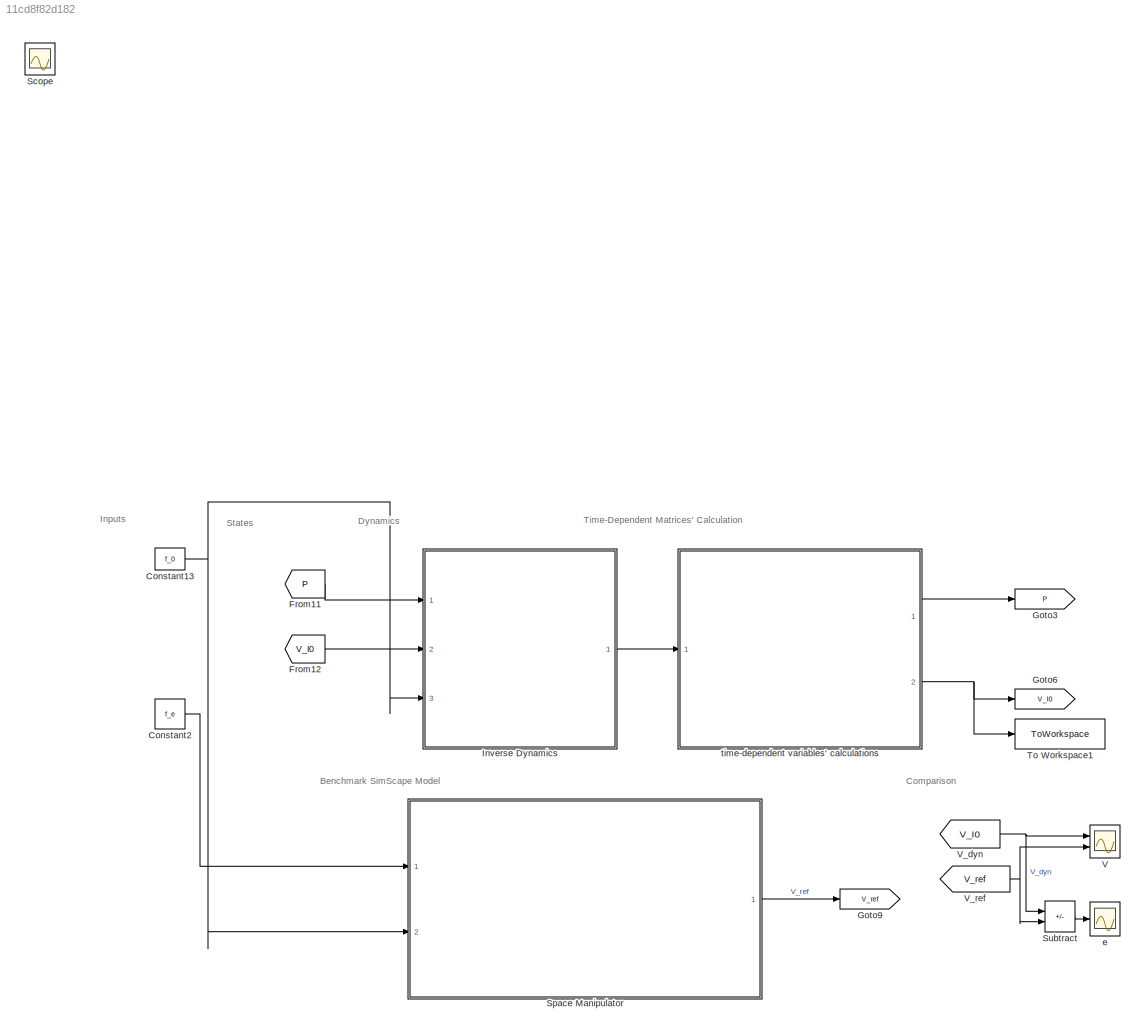
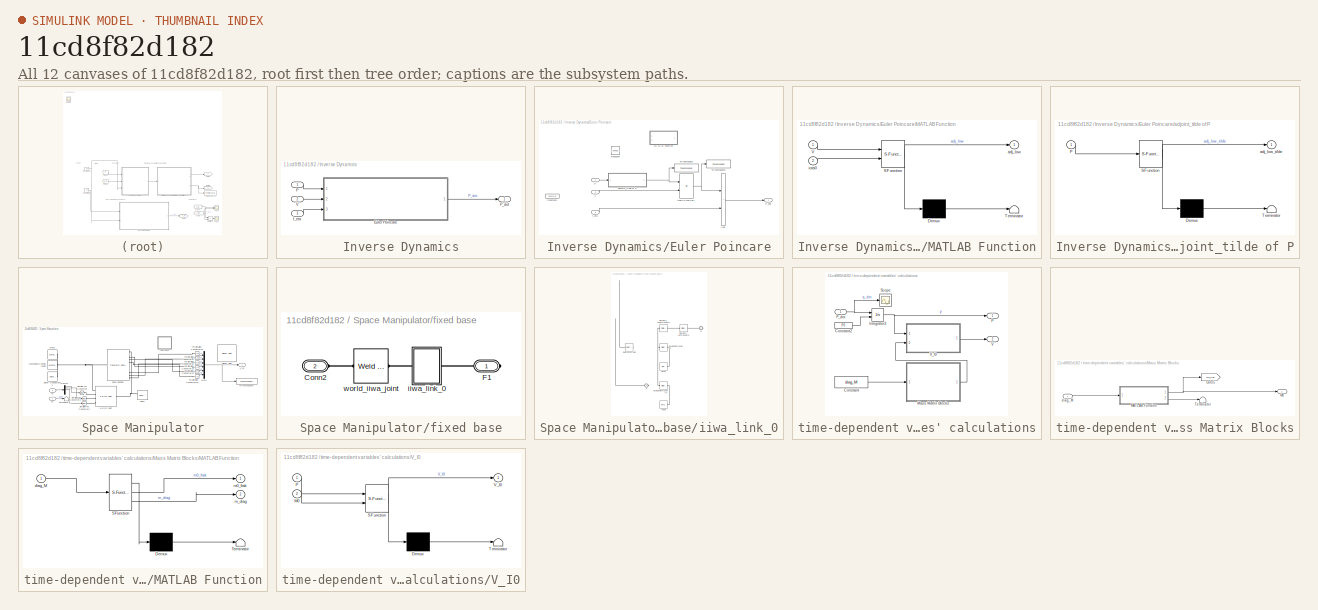
[diagram: thumbnail index - all 12 canvases of the model, root first then tree order]
MODEL slx_11cd8f82d182
KIND model
CONFIG AbsTol = auto
CONFIG EnableMultiTasking = off
CONFIG FixedStep = 0.01
CONFIG InitFcn = % ************** Initiate forces\n% f0=[0;0;0;0;0;0];\n%f_0=[1;2;3;0;0;0];\n%f_0=[0;0;0];\n%f_m=[0.1;0;0.3;0.2;0;0.15;0];\n%f_e=[0;0;0;0;0;0];\n% ************** Initiate states\n%q_m=[0;0];\n%q_dot_m=[0;0];\n%P=[0;0;0];\n%V_I0=[0;0;0];\n% ************** Load main\n%run(Main.m)\n%P0=[1; 2; 3; 0 ;0;0];
CONFIG MaxStep = auto
CONFIG MinStep = auto
CONFIG RelTol = 1e-3
CONFIG SampleTimeConstraint = Unconstrained
CONFIG SolverName = ode4
CONFIG StartTime = 0.0
CONFIG StopTime = 5
BLOCK [Constant] Constant13
  Value = f_0
  VectorParams1D = off
BLOCK [Constant] Constant2
  Value = f_e
  VectorParams1D = off
BLOCK [From] From11
  GotoTag = P
  TagVisibility = global
BLOCK [From] From12
  GotoTag = V_I0
  TagVisibility = global
BLOCK [Goto] Goto3
  GotoTag = P
  TagVisibility = global
BLOCK [Goto] Goto6
  GotoTag = V_I0
  TagVisibility = global
BLOCK [Goto] Goto9
  GotoTag = V_ref
  TagVisibility = global
BLOCK [SubSystem] Inverse Dynamics
  NameLocation = right
  Ports = [3, 1]
  RequestExecContextInheritance = off
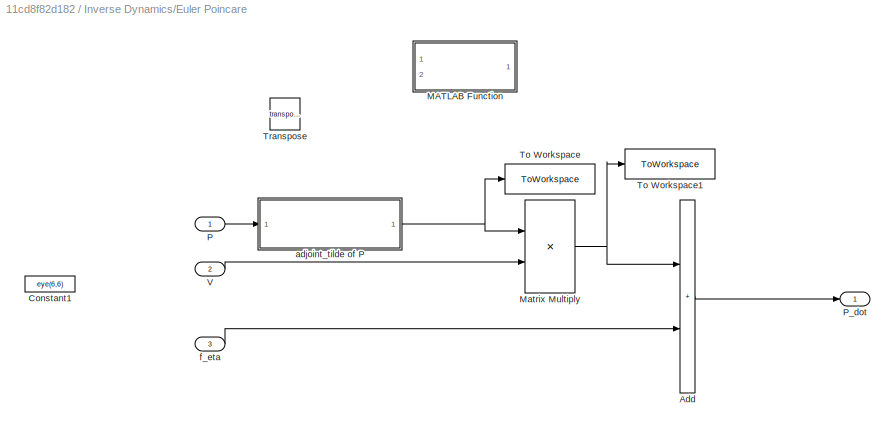
BLOCK [SubSystem] Inverse Dynamics/Euler Poincare
  Ports = [3, 1]
  RequestExecContextInheritance = off
BLOCK [Sum] Inverse Dynamics/Euler Poincare/Add
  IconShape = rectangular
  Ports = [2, 1]
BLOCK [Constant] Inverse Dynamics/Euler Poincare/Constant1
  Commented = on
  Value = eye(6,6)
BLOCK [SubSystem] Inverse Dynamics/Euler Poincare/MATLAB Function
  Commented = on
  ErrorFcn = Stateflow.Translate.translate
  PermitHierarchicalResolution = ExplicitOnly
  Ports = [2, 1]
  RequestExecContextInheritance = off
  SFBlockType = MATLAB Function
  TreatAsAtomicUnit = on
BLOCK [Demux] Inverse Dynamics/Euler Poincare/MATLAB Function/ Demux 
  Outputs = 1
  Ports = [1, 1]
BLOCK [S-Function] Inverse Dynamics/Euler Poincare/MATLAB Function/ SFunction 
  EnableBusSupport = on
  FunctionName = sf_sfun
  PortCounts = [2 2]
  Ports = [2, 2]
  SFcnIsStateOwnerBlock = off
  SFunctionDeploymentMode = off
  Tag = Stateflow S-Function 27
BLOCK [Terminator] Inverse Dynamics/Euler Poincare/MATLAB Function/ Terminator 
BLOCK [Inport] Inverse Dynamics/Euler Poincare/MATLAB Function/V
BLOCK [Outport] Inverse Dynamics/Euler Poincare/MATLAB Function/adj_low
BLOCK [Inport] Inverse Dynamics/Euler Poincare/MATLAB Function/iota0
  Port = 2
BLOCK [Product] Inverse Dynamics/Euler Poincare/Matrix Multiply
  Multiplication = Matrix(*)
  Ports = [2, 1]
BLOCK [Inport] Inverse Dynamics/Euler Poincare/P
BLOCK [Outport] Inverse Dynamics/Euler Poincare/P_dot
BLOCK [ToWorkspace] Inverse Dynamics/Euler Poincare/To Workspace
  FixptAsFi = on
  MaxDataPoints = inf
  Ports = [1]
  SampleTime = -1
  SaveFormat = Timeseries
  VariableName = simout
BLOCK [ToWorkspace] Inverse Dynamics/Euler Poincare/To Workspace1
  FixptAsFi = on
  MaxDataPoints = inf
  Ports = [1]
  SampleTime = -1
  SaveFormat = Timeseries
  VariableName = simout1
BLOCK [Math] Inverse Dynamics/Euler Poincare/Transpose
  Commented = on
  Operator = transpose
  Ports = [1, 1]
BLOCK [Inport] Inverse Dynamics/Euler Poincare/V
  Port = 2
BLOCK [SubSystem] Inverse Dynamics/Euler Poincare/adjoint_tilde of P
  ErrorFcn = Stateflow.Translate.translate
  PermitHierarchicalResolution = ExplicitOnly
  Ports = [1, 1]
  RequestExecContextInheritance = off
  SFBlockType = MATLAB Function
  TreatAsAtomicUnit = on
BLOCK [Demux] Inverse Dynamics/Euler Poincare/adjoint_tilde of P/ Demux 
  Outputs = 1
  Ports = [1, 1]
BLOCK [S-Function] Inverse Dynamics/Euler Poincare/adjoint_tilde of P/ SFunction 
  EnableBusSupport = on
  FunctionName = sf_sfun
  PortCounts = [1 2]
  Ports = [1, 2]
  SFcnIsStateOwnerBlock = off
  SFunctionDeploymentMode = off
  Tag = Stateflow S-Function 1
BLOCK [Terminator] Inverse Dynamics/Euler Poincare/adjoint_tilde of P/ Terminator 
BLOCK [Inport] Inverse Dynamics/Euler Poincare/adjoint_tilde of P/P
BLOCK [Outport] Inverse Dynamics/Euler Poincare/adjoint_tilde of P/adj_low_tilde
BLOCK [Inport] Inverse Dynamics/Euler Poincare/f_eta
  Port = 3
BLOCK [Inport] Inverse Dynamics/P
BLOCK [Outport] Inverse Dynamics/P_dot
BLOCK [Inport] Inverse Dynamics/V
  Port = 2
BLOCK [Inport] Inverse Dynamics/f_eta
  Port = 3
BLOCK [Scope] Scope
  Floating = off
  IOType = viewer
  NumInputPorts = 1
  Ports = []
  ScopeSpecificationString = Simulink.scopes.TimeScopeBlockCfg('CurrentConfiguration', extmgr.ConfigurationSet(extmgr.Configuration('Core','General UI',true),extmgr.Configuration('Core','Source UI',true),extmgr.Configuration('Sources','WiredSimulink',true),extmgr.Configuration('Visuals','Time Domain',true,'SerializedDisplays',{struct('MinYLimReal','-10','MaxYLimReal','10','YLabelReal','','MinYLimMag','0','MaxYLimMag','10','Le...<+777ch>
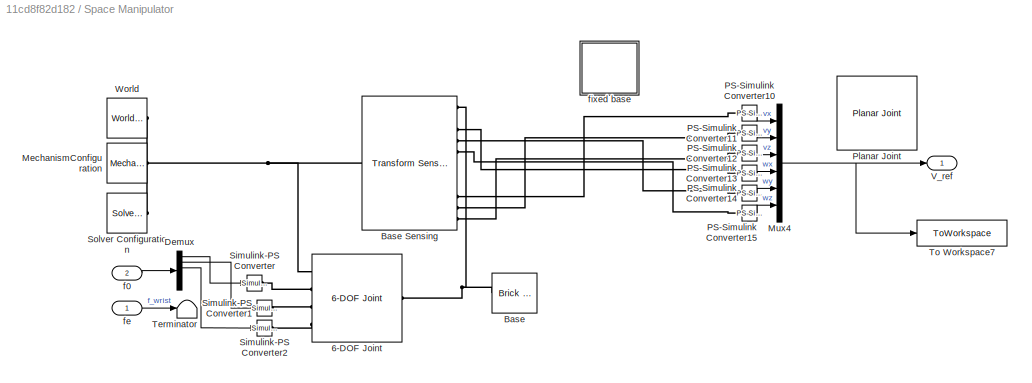
BLOCK [SubSystem] Space Manipulator
  Ports = [2, 1]
  RequestExecContextInheritance = off
BLOCK [Reference] Space Manipulator/6-DOF Joint  REF=sm_lib/Joints/6-DOF Joint
  Ports = [0, 0, 0, 0, 0, 4, 1]
  SourceBlock = sm_lib/Joints/6-DOF Joint
  SourceProductBaseCode = MS
  SourceType = 6-DOF Joint
BLOCK [Reference] Space Manipulator/Base  REF=sm_lib/Body Elements/Brick Solid
  Ports = [0, 0, 0, 0, 0, 1, 1]
  SourceBlock = sm_lib/Body Elements/Brick Solid
  SourceProductBaseCode = MS
  SourceType = Brick Solid
BLOCK [Reference] Space Manipulator/Base Sensing  REF=sm_lib/Frames and
Transforms/Transform
Sensor
  Ports = [0, 0, 0, 0, 0, 1, 11]
  SourceBlock = sm_lib/Frames and\nTransforms/Transform\nSensor
  SourceProductBaseCode = MS
  SourceType = Transform\nSensor
BLOCK [Demux] Space Manipulator/Demux
  Outputs = 6
  Ports = [1, 6]
BLOCK [Reference] Space Manipulator/MechanismConfiguration  REF=sm_lib/Utilities/Mechanism
Configuration
  Ports = [0, 0, 0, 0, 0, 0, 1]
  SourceBlock = sm_lib/Utilities/Mechanism\nConfiguration
  SourceProductBaseCode = MS
  SourceType = Mechanism\nConfiguration
BLOCK [Mux] Space Manipulator/Mux4
  DisplayOption = bar
  Inputs = 6
  Ports = [6, 1]
BLOCK [Reference] Space Manipulator/PS-Simulink Converter10  REF=nesl_utility/PS-Simulink
Converter
  Ports = [0, 1, 0, 0, 0, 1]
  SourceBlock = nesl_utility/PS-Simulink\nConverter
  SourceProductBaseCode = PW,SS
  SourceType = PS-Simulink\nConverter
BLOCK [Reference] Space Manipulator/PS-Simulink Converter11  REF=nesl_utility/PS-Simulink
Converter
  Ports = [0, 1, 0, 0, 0, 1]
  SourceBlock = nesl_utility/PS-Simulink\nConverter
  SourceProductBaseCode = PW,SS
  SourceType = PS-Simulink\nConverter
BLOCK [Reference] Space Manipulator/PS-Simulink Converter12  REF=nesl_utility/PS-Simulink
Converter
  Ports = [0, 1, 0, 0, 0, 1]
  SourceBlock = nesl_utility/PS-Simulink\nConverter
  SourceProductBaseCode = PW,SS
  SourceType = PS-Simulink\nConverter
BLOCK [Reference] Space Manipulator/PS-Simulink Converter13  REF=nesl_utility/PS-Simulink
Converter
  Ports = [0, 1, 0, 0, 0, 1]
  SourceBlock = nesl_utility/PS-Simulink\nConverter
  SourceProductBaseCode = PW,SS
  SourceType = PS-Simulink\nConverter
BLOCK [Reference] Space Manipulator/PS-Simulink Converter14  REF=nesl_utility/PS-Simulink
Converter
  Ports = [0, 1, 0, 0, 0, 1]
  SourceBlock = nesl_utility/PS-Simulink\nConverter
  SourceProductBaseCode = PW,SS
  SourceType = PS-Simulink\nConverter
BLOCK [Reference] Space Manipulator/PS-Simulink Converter15  REF=nesl_utility/PS-Simulink
Converter
  Ports = [0, 1, 0, 0, 0, 1]
  SourceBlock = nesl_utility/PS-Simulink\nConverter
  SourceProductBaseCode = PW,SS
  SourceType = PS-Simulink\nConverter
BLOCK [Reference] Space Manipulator/Planar Joint  REF=sm_lib/Joints/Planar Joint
  Commented = on
  Ports = [0, 0, 0, 0, 0, 1, 4]
  SourceBlock = sm_lib/Joints/Planar Joint
  SourceProductBaseCode = MS
  SourceType = Planar Joint
BLOCK [Reference] Space Manipulator/Simulink-PS Converter  REF=nesl_utility/Simulink-PS
Converter
  Ports = [1, 0, 0, 0, 0, 0, 1]
  SourceBlock = nesl_utility/Simulink-PS\nConverter
  SourceProductBaseCode = PW,SS
  SourceType = Simulink-PS\nConverter
BLOCK [Reference] Space Manipulator/Simulink-PS Converter1  REF=nesl_utility/Simulink-PS
Converter
  Ports = [1, 0, 0, 0, 0, 0, 1]
  SourceBlock = nesl_utility/Simulink-PS\nConverter
  SourceProductBaseCode = PW,SS
  SourceType = Simulink-PS\nConverter
BLOCK [Reference] Space Manipulator/Simulink-PS Converter2  REF=nesl_utility/Simulink-PS
Converter
  Ports = [1, 0, 0, 0, 0, 0, 1]
  SourceBlock = nesl_utility/Simulink-PS\nConverter
  SourceProductBaseCode = PW,SS
  SourceType = Simulink-PS\nConverter
BLOCK [Reference] Space Manipulator/Solver Configuration  REF=nesl_utility/Solver
Configuration
  Ports = [0, 0, 0, 0, 0, 0, 1]
  SourceBlock = nesl_utility/Solver\nConfiguration
  SourceProductBaseCode = PW,SS
  SourceType = Solver\nConfiguration
BLOCK [Terminator] Space Manipulator/Terminator
BLOCK [ToWorkspace] Space Manipulator/To Workspace7
  FixptAsFi = on
  MaxDataPoints = inf
  Ports = [1]
  SampleTime = -1
  VariableName = V_ref
BLOCK [Outport] Space Manipulator/V_ref
BLOCK [Reference] Space Manipulator/World  REF=sm_lib/Frames and
Transforms/World Frame
  Ports = [0, 0, 0, 0, 0, 0, 1]
  SourceBlock = sm_lib/Frames and\nTransforms/World Frame
  SourceProductBaseCode = MS
  SourceType = World Frame
BLOCK [Inport] Space Manipulator/f0
  Port = 2
BLOCK [Inport] Space Manipulator/fe
BLOCK [SubSystem] Space Manipulator/fixed base
  Commented = on
  Ports = [0, 0, 0, 0, 0, 1, 1]
  RequestExecContextInheritance = off
BLOCK [PMIOPort] Space Manipulator/fixed base/Conn2
  Port = 2
  Side = Left
BLOCK [PMIOPort] Space Manipulator/fixed base/F1
  Side = Right
BLOCK [SubSystem] Space Manipulator/fixed base/iiwa_link_0
  Ports = [0, 0, 0, 0, 0, 1, 1]
  RequestExecContextInheritance = off
BLOCK [PMIOPort] Space Manipulator/fixed base/iiwa_link_0/F
  Side = Left
BLOCK [PMIOPort] Space Manipulator/fixed base/iiwa_link_0/F1
  Port = 2
  Side = Right
BLOCK [Reference] Space Manipulator/fixed base/iiwa_link_0/Inertia  REF=sm_lib/Body Elements/Inertia
  Ports = [0, 0, 0, 0, 0, 0, 1]
  SourceBlock = sm_lib/Body Elements/Inertia
  SourceProductBaseCode = MS
  SourceType = Inertia
BLOCK [Reference] Space Manipulator/fixed base/iiwa_link_0/InertiaOriginTransform  REF=sm_lib/Frames and
Transforms/Rigid
Transform
  Ports = [0, 0, 0, 0, 0, 1, 1]
  SourceBlock = sm_lib/Frames and\nTransforms/Rigid\nTransform
  SourceProductBaseCode = MS
  SourceType = Rigid\nTransform
BLOCK [Reference] Space Manipulator/fixed base/iiwa_link_0/ReferenceFrame  REF=sm_lib/Frames and
Transforms/Reference
Frame
  Ports = [0, 0, 0, 0, 0, 0, 1]
  SourceBlock = sm_lib/Frames and\nTransforms/Reference\nFrame
  SourceProductBaseCode = MS
  SourceType = Reference\nFrame
BLOCK [Reference] Space Manipulator/fixed base/iiwa_link_0/Visual  REF=sm_lib/Body Elements/File Solid
  Ports = [0, 0, 0, 0, 0, 0, 1]
  SourceBlock = sm_lib/Body Elements/File Solid
  SourceProductBaseCode = MS
  SourceType = File Solid
BLOCK [Reference] Space Manipulator/fixed base/iiwa_link_0/VisualOriginTransform  REF=sm_lib/Frames and
Transforms/Rigid
Transform
  Ports = [0, 0, 0, 0, 0, 1, 1]
  SourceBlock = sm_lib/Frames and\nTransforms/Rigid\nTransform
  SourceProductBaseCode = MS
  SourceType = Rigid\nTransform
BLOCK [Reference] Space Manipulator/fixed base/iiwa_link_0/iiwa_joint_1_AxisTransform  REF=sm_lib/Frames and
Transforms/Rigid
Transform
  Ports = [0, 0, 0, 0, 0, 1, 1]
  SourceBlock = sm_lib/Frames and\nTransforms/Rigid\nTransform
  SourceProductBaseCode = MS
  SourceType = Rigid\nTransform
BLOCK [Reference] Space Manipulator/fixed base/iiwa_link_0/iiwa_joint_1_OriginTransform  REF=sm_lib/Frames and
Transforms/Rigid
Transform
  Ports = [0, 0, 0, 0, 0, 1, 1]
  SourceBlock = sm_lib/Frames and\nTransforms/Rigid\nTransform
  SourceProductBaseCode = MS
  SourceType = Rigid\nTransform
BLOCK [Reference] Space Manipulator/fixed base/world_iiwa_joint  REF=sm_lib/Joints/Weld Joint
  Ports = [0, 0, 0, 0, 0, 1, 1]
  SourceBlock = sm_lib/Joints/Weld Joint
  SourceProductBaseCode = MS
  SourceType = Weld Joint
BLOCK [Sum] Subtract
  IconShape = rectangular
  Inputs = +-
  Ports = [2, 1]
BLOCK [ToWorkspace] To Workspace1
  FixptAsFi = on
  MaxDataPoints = inf
  Ports = [1]
  SampleTime = -1
  SaveFormat = Timeseries
  VariableName = V_I0
BLOCK [Scope] V
  Floating = off
  NumInputPorts = 2
  Ports = [2]
  ScopeSpecificationString = Simulink.scopes.TimeScopeBlockCfg('CurrentConfiguration', extmgr.ConfigurationSet(extmgr.Configuration('Core','General UI',true),extmgr.Configuration('Core','Source UI',true),extmgr.Configuration('Sources','WiredSimulink',true,'DataLoggingVariableName','ScopeData2'),extmgr.Configuration('Visuals','Time Domain',true,'SerializedDisplays',{struct('MinYLimReal','-0.1875','MaxYLimReal','1.6875','YLabel...<+1976ch>
BLOCK [From] V_dyn
  GotoTag = V_I0
  TagVisibility = global
BLOCK [From] V_ref
  GotoTag = V_ref
  TagVisibility = global
BLOCK [Scope] e
  Floating = off
  NumInputPorts = 1
  Ports = [1]
  ScopeSpecificationString = Simulink.scopes.TimeScopeBlockCfg('CurrentConfiguration', extmgr.ConfigurationSet(extmgr.Configuration('Core','General UI',true),extmgr.Configuration('Core','Source UI',true),extmgr.Configuration('Sources','WiredSimulink',true,'DataLoggingVariableName','ScopeData1'),extmgr.Configuration('Visuals','Time Domain',true,'SerializedDisplays',{struct('MinYLimReal','-0.000000000000015','MaxYLimReal','0.00...<+1715ch>
BLOCK [SubSystem] time-dependent variables' calculations
  Ports = [1, 2]
  RequestExecContextInheritance = off
BLOCK [Constant] time-dependent variables' calculations/Constant
  Value = diag_M
  VectorParams1D = off
BLOCK [Constant] time-dependent variables' calculations/Constant2
  Value = P0
  VectorParams1D = off
BLOCK [Integrator] time-dependent variables' calculations/Integrator3
  InitialConditionSource = external
  Ports = [2, 1]
BLOCK [SubSystem] time-dependent variables' calculations/Mass Matrix Blocks
  Ports = [1, 1]
  RequestExecContextInheritance = off
BLOCK [Goto] time-dependent variables' calculations/Mass Matrix Blocks/Goto5
  GotoTag = m0_frak
  TagVisibility = global
BLOCK [Outport] time-dependent variables' calculations/Mass Matrix Blocks/M0
BLOCK [SubSystem] time-dependent variables' calculations/Mass Matrix Blocks/MATLAB Function
  ErrorFcn = Stateflow.Translate.translate
  PermitHierarchicalResolution = ExplicitOnly
  Ports = [1, 2]
  RequestExecContextInheritance = off
  SFBlockType = MATLAB Function
  TreatAsAtomicUnit = on
BLOCK [Demux] time-dependent variables' calculations/Mass Matrix Blocks/MATLAB Function/ Demux 
  Outputs = 1
  Ports = [1, 1]
BLOCK [S-Function] time-dependent variables' calculations/Mass Matrix Blocks/MATLAB Function/ SFunction 
  EnableBusSupport = on
  FunctionName = sf_sfun
  PortCounts = [1 3]
  Ports = [1, 3]
  SFcnIsStateOwnerBlock = off
  SFunctionDeploymentMode = off
  Tag = Stateflow S-Function 40
BLOCK [Terminator] time-dependent variables' calculations/Mass Matrix Blocks/MATLAB Function/ Terminator 
BLOCK [Inport] time-dependent variables' calculations/Mass Matrix Blocks/MATLAB Function/diag_M
BLOCK [Outport] time-dependent variables' calculations/Mass Matrix Blocks/MATLAB Function/m0_frak
BLOCK [Outport] time-dependent variables' calculations/Mass Matrix Blocks/MATLAB Function/m_diag
  Port = 2
BLOCK [Terminator] time-dependent variables' calculations/Mass Matrix Blocks/Terminator
BLOCK [Inport] time-dependent variables' calculations/Mass Matrix Blocks/diag_M
BLOCK [Outport] time-dependent variables' calculations/P
BLOCK [Inport] time-dependent variables' calculations/P_dot
BLOCK [Scope] time-dependent variables' calculations/Scope
  Floating = off
  NumInputPorts = 1
  Ports = [1]
  ScopeSpecificationString = Simulink.scopes.TimeScopeBlockCfg('CurrentConfiguration', extmgr.ConfigurationSet(extmgr.Configuration('Core','General UI',true),extmgr.Configuration('Core','Source UI',true),extmgr.Configuration('Sources','WiredSimulink',true,'DataLoggingVariableName','ScopeData1'),extmgr.Configuration('Visuals','Time Domain',true,'SerializedDisplays',{struct('MinYLimReal','-0.375','MaxYLimReal','3.375','YLabelRe...<+1404ch>
BLOCK [Outport] time-dependent variables' calculations/V
  Port = 2
BLOCK [SubSystem] time-dependent variables' calculations/V_I0
  ErrorFcn = Stateflow.Translate.translate
  PermitHierarchicalResolution = ExplicitOnly
  Ports = [2, 1]
  RequestExecContextInheritance = off
  SFBlockType = MATLAB Function
  TreatAsAtomicUnit = on
BLOCK [Demux] time-dependent variables' calculations/V_I0/ Demux 
  Outputs = 1
  Ports = [1, 1]
BLOCK [S-Function] time-dependent variables' calculations/V_I0/ SFunction 
  EnableBusSupport = on
  FunctionName = sf_sfun
  PortCounts = [2 2]
  Ports = [2, 2]
  SFcnIsStateOwnerBlock = off
  SFunctionDeploymentMode = off
  Tag = Stateflow S-Function 64
BLOCK [Terminator] time-dependent variables' calculations/V_I0/ Terminator 
BLOCK [Inport] time-dependent variables' calculations/V_I0/M0
  Port = 2
BLOCK [Inport] time-dependent variables' calculations/V_I0/P
BLOCK [Outport] time-dependent variables' calculations/V_I0/V_I0
ANNOTATION (root): Benchmark SimScape Model
ANNOTATION (root): Comparison
ANNOTATION (root): Dynamics
ANNOTATION (root): Inputs
ANNOTATION (root): States
ANNOTATION (root): Time-Dependent Matrices' Calculation
NET Constant13:1 -> Inverse Dynamics:3, Space Manipulator:2
LINE Constant2:1 -> Space Manipulator:1
LINE From11:1 -> Inverse Dynamics:1
LINE From12:1 -> Inverse Dynamics:2
LINE Inverse Dynamics/Euler Poincare/Add:1 -> Inverse Dynamics/Euler Poincare/P_dot:1
NET Inverse Dynamics/Euler Poincare/Matrix Multiply:1 -> Inverse Dynamics/Euler Poincare/Add:1, Inverse Dynamics/Euler Poincare/To Workspace1:1
LINE Inverse Dynamics/Euler Poincare/P:1 -> Inverse Dynamics/Euler Poincare/adjoint_tilde of P:1
LINE Inverse Dynamics/Euler Poincare/V:1 -> Inverse Dynamics/Euler Poincare/Matrix Multiply:2
NET Inverse Dynamics/Euler Poincare/adjoint_tilde of P:1 -> Inverse Dynamics/Euler Poincare/Matrix Multiply:1, Inverse Dynamics/Euler Poincare/To Workspace:1
LINE Inverse Dynamics/Euler Poincare/f_eta:1 -> Inverse Dynamics/Euler Poincare/Add:2
LINE Inverse Dynamics/Euler Poincare:1 -> Inverse Dynamics/P_dot:1
LINE Inverse Dynamics/P:1 -> Inverse Dynamics/Euler Poincare:1
LINE Inverse Dynamics/V:1 -> Inverse Dynamics/Euler Poincare:2
LINE Inverse Dynamics/f_eta:1 -> Inverse Dynamics/Euler Poincare:3
LINE Inverse Dynamics:1 -> time-dependent variables' calculations:1
LINE Space Manipulator/Demux:1 -> Space Manipulator/Simulink-PS Converter:1
LINE Space Manipulator/Demux:2 -> Space Manipulator/Simulink-PS Converter1:1
LINE Space Manipulator/Demux:3 -> Space Manipulator/Simulink-PS Converter2:1
NET Space Manipulator/Mux4:1 -> Space Manipulator/To Workspace7:1, Space Manipulator/V_ref:1
LINE Space Manipulator/PS-Simulink Converter10:1 -> Space Manipulator/Mux4:1
LINE Space Manipulator/PS-Simulink Converter11:1 -> Space Manipulator/Mux4:2
LINE Space Manipulator/PS-Simulink Converter12:1 -> Space Manipulator/Mux4:3
LINE Space Manipulator/PS-Simulink Converter13:1 -> Space Manipulator/Mux4:4
LINE Space Manipulator/PS-Simulink Converter14:1 -> Space Manipulator/Mux4:5
LINE Space Manipulator/PS-Simulink Converter15:1 -> Space Manipulator/Mux4:6
LINE Space Manipulator/f0:1 -> Space Manipulator/Demux:1
LINE Space Manipulator/fe:1 -> Space Manipulator/Terminator:1
LINE Space Manipulator:1 -> Goto9:1
LINE Subtract:1 -> e:1
NET V_dyn:1 -> Subtract:1, V:1
NET V_ref:1 -> Subtract:2, V:2
LINE time-dependent variables' calculations/Constant2:1 -> time-dependent variables' calculations/Integrator3:2
LINE time-dependent variables' calculations/Constant:1 -> time-dependent variables' calculations/Mass Matrix Blocks:1
NET time-dependent variables' calculations/Integrator3:1 -> time-dependent variables' calculations/P:1, time-dependent variables' calculations/V_I0:1
NET time-dependent variables' calculations/Mass Matrix Blocks/MATLAB Function:1 -> time-dependent variables' calculations/Mass Matrix Blocks/Goto5:1, time-dependent variables' calculations/Mass Matrix Blocks/M0:1
LINE time-dependent variables' calculations/Mass Matrix Blocks/MATLAB Function:2 -> time-dependent variables' calculations/Mass Matrix Blocks/Terminator:1
LINE time-dependent variables' calculations/Mass Matrix Blocks/diag_M:1 -> time-dependent variables' calculations/Mass Matrix Blocks/MATLAB Function:1
LINE time-dependent variables' calculations/Mass Matrix Blocks:1 -> time-dependent variables' calculations/V_I0:2
NET time-dependent variables' calculations/P_dot:1 -> time-dependent variables' calculations/Integrator3:1, time-dependent variables' calculations/Scope:1
LINE time-dependent variables' calculations/V_I0:1 -> time-dependent variables' calculations/V:1
LINE time-dependent variables' calculations:1 -> Goto3:1
NET time-dependent variables' calculations:2 -> Goto6:1, To Workspace1:1
PNET net1: Space Manipulator/6-DOF Joint:LConn1 -- Space Manipulator/Base Sensing:LConn1 -- Space Manipulator/MechanismConfiguration:RConn1 -- Space Manipulator/Solver Configuration:RConn1 -- Space Manipulator/World:RConn1
PLINE Space Manipulator/6-DOF Joint:LConn2 -- Space Manipulator/Simulink-PS Converter:RConn1
PLINE Space Manipulator/6-DOF Joint:LConn3 -- Space Manipulator/Simulink-PS Converter1:RConn1
PLINE Space Manipulator/6-DOF Joint:LConn4 -- Space Manipulator/Simulink-PS Converter2:RConn1
PNET net2: Space Manipulator/6-DOF Joint:RConn1 -- Space Manipulator/Base Sensing:RConn1 -- Space Manipulator/Base:RConn1
PLINE Space Manipulator/Base Sensing:RConn10 -- Space Manipulator/PS-Simulink Converter11:LConn1
PLINE Space Manipulator/Base Sensing:RConn11 -- Space Manipulator/PS-Simulink Converter12:LConn1
PLINE Space Manipulator/Base Sensing:RConn3 -- Space Manipulator/PS-Simulink Converter13:LConn1
PLINE Space Manipulator/Base Sensing:RConn4 -- Space Manipulator/PS-Simulink Converter14:LConn1
PLINE Space Manipulator/Base Sensing:RConn5 -- Space Manipulator/PS-Simulink Converter15:LConn1
PLINE Space Manipulator/Base Sensing:RConn9 -- Space Manipulator/PS-Simulink Converter10:LConn1
PLINE Space Manipulator/fixed base/Conn2:RConn1 -- Space Manipulator/fixed base/world_iiwa_joint:LConn1
PLINE Space Manipulator/fixed base/F1:RConn1 -- Space Manipulator/fixed base/iiwa_link_0:RConn1
PLINE Space Manipulator/fixed base/iiwa_link_0/F1:RConn1 -- Space Manipulator/fixed base/iiwa_link_0/iiwa_joint_1_AxisTransform:RConn1
PNET net3: Space Manipulator/fixed base/iiwa_link_0/F:RConn1 -- Space Manipulator/fixed base/iiwa_link_0/InertiaOriginTransform:LConn1 -- Space Manipulator/fixed base/iiwa_link_0/ReferenceFrame:RConn1 -- Space Manipulator/fixed base/iiwa_link_0/VisualOriginTransform:LConn1 -- Space Manipulator/fixed base/iiwa_link_0/iiwa_joint_1_OriginTransform:LConn1
PLINE Space Manipulator/fixed base/iiwa_link_0/Inertia:RConn1 -- Space Manipulator/fixed base/iiwa_link_0/InertiaOriginTransform:RConn1
PLINE Space Manipulator/fixed base/iiwa_link_0/Visual:RConn1 -- Space Manipulator/fixed base/iiwa_link_0/VisualOriginTransform:RConn1
PLINE Space Manipulator/fixed base/iiwa_link_0/iiwa_joint_1_AxisTransform:LConn1 -- Space Manipulator/fixed base/iiwa_link_0/iiwa_joint_1_OriginTransform:RConn1
PLINE Space Manipulator/fixed base/iiwa_link_0:LConn1 -- Space Manipulator/fixed base/world_iiwa_joint:RConn1
note: NET lines group one-source signal fan-out (src -> all destinations, sorted); 1:1 wires keep LINE; PNET lines group multi-terminal physical nets as a canonical sorted terminal list (undirected conserving connections); 2-terminal nets keep the pairwise PLINE form
CHART Inverse Dynamics/Euler Poincare/adjoint_tilde of P states=1 transitions=1
  STATE_LABEL 'eML_blk_kernel()'
  STATE_LABEL 'SCRIPT:\nfunction adj_low_tilde = adj_low_tilde(P)\n% calculates the adjoint corresponding to the Lie bracket of vector V and ()\nadj_low_tilde = adjoint_low_tilde(P);\n'
CHART Inverse Dynamics/Euler Poincare/MATLAB Function states=1 transitions=1
  STATE_LABEL 'eML_blk_kernel()'
  STATE_LABEL 'SCRIPT:\nfunction adj_low = adj_low(V, iota0)\n% calculates the adjoint corresponding to the Lie bracket of vector V and ()\nadj_low = adjoint_low(V,iota0);\n'
CHART time-dependent variables' calculations/Mass Matrix Blocks/MATLAB Function states=1 transitions=1
  STATE_LABEL 'eML_blk_kernel()'
  STATE_LABEL 'SCRIPT:\nfunction [m0_frak,m_diag]=m_frak_decomp(diag_M)\n% Compute the Mass Matrix of the multibody system.\n%   Output:\n%   M0      Spacecraft mass matrix \n%   M0m\n%   Mm      Manipulator mass matrix\n\n%n=length(q_m);\n\nm0_frak=diag_M(1:6,1:6);\nm_diag=diag_M(7:end,7:end);'
CHART time-dependent variables' calculations/V_I0 states=1 transitions=1
  STATE_LABEL 'eML_blk_kernel()'
  STATE_LABEL 'SCRIPT:\nfunction V_I0=V_I0(P,M0)\n% Find the spaccecraft velocity V_I0\n\nV_I0=M0\\P;\n'
CHART  states=0 transitions=0
CHART  states=0 transitions=0
CHART  states=0 transitions=0
CHART  states=0 transitions=0
